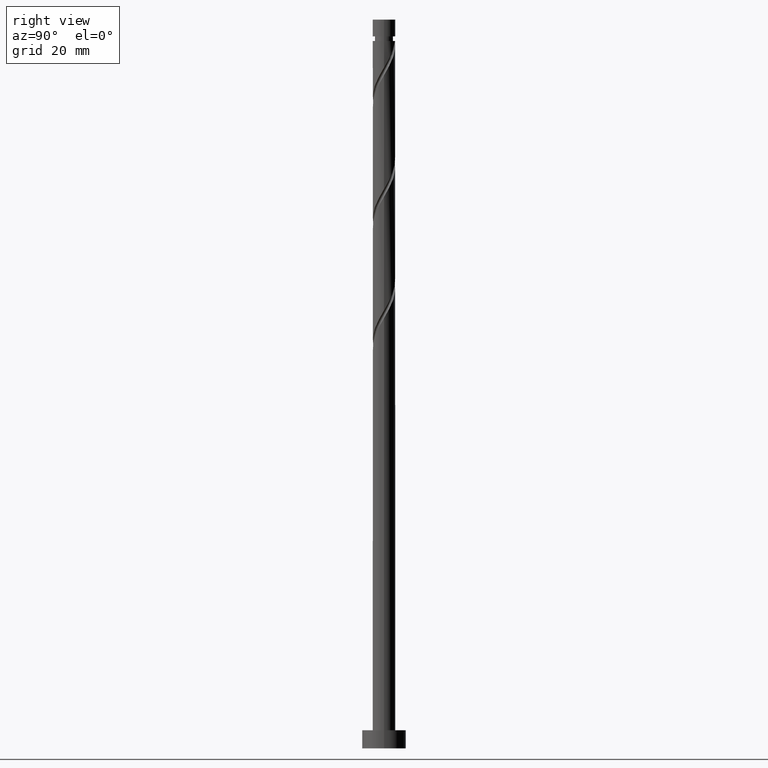
[diagram: clean part render]
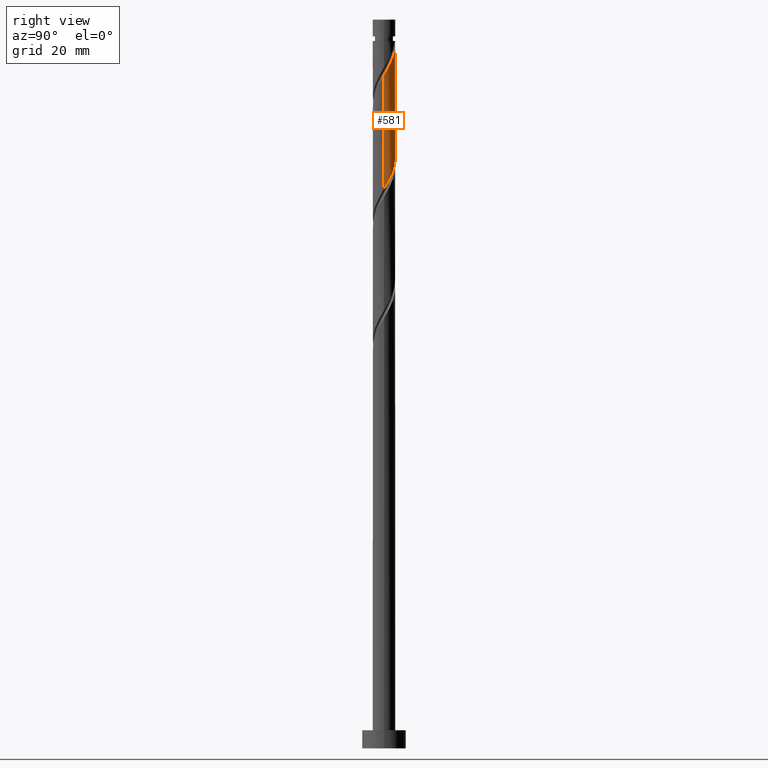
[diagram: same view with one face highlighted and labeled with its STEP entity id]
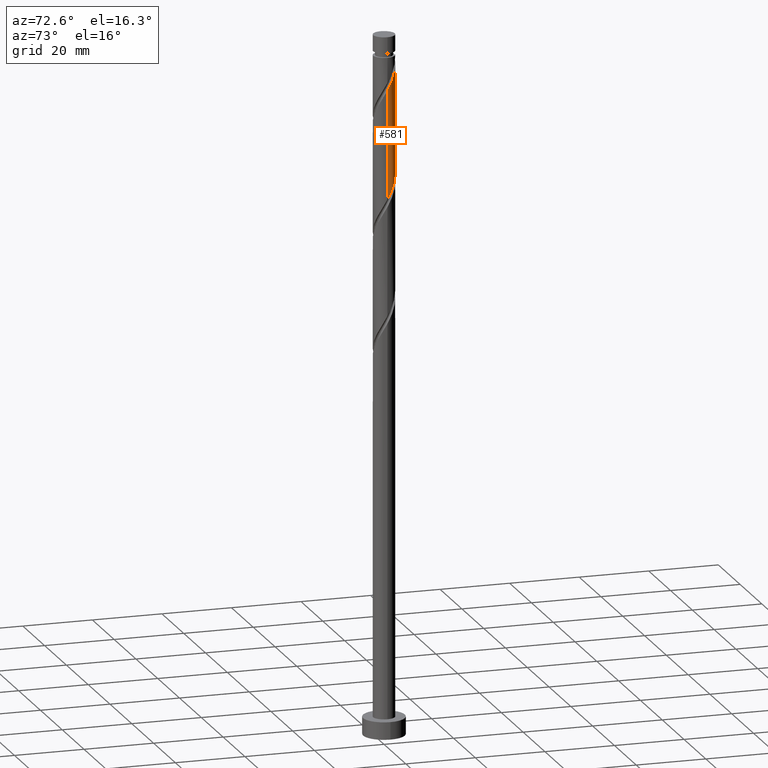
[diagram: same view with one face highlighted and labeled with its STEP entity id]
A machine part, right view. The second image highlights one B-rep face of the part: STEP entity #581.
A second angle (auxiliary view) of the same face is appended — the face is thin or edge-on in the first view.
In plain terms, the highlighted cylindrical surface (edge-blend (fillet) strip) has radius 3.1 mm, axis along (-0, -0, -1).
Its self-contained STEP definition (entity closure, byte-faithful):
#1 = CARTESIAN_POINT ( 'NONE',  ( 3.100000000000000533, 4.501089117529644308E-15, 153.5358491587207652 ) ) ;
#38 = CARTESIAN_POINT ( 'NONE',  ( 2.053244326128037756, 2.322539071194070548, 158.0278380590661698 ) ) ;
#65 = CARTESIAN_POINT ( 'NONE',  ( 3.100000000000000977, 4.501089117529643519E-15, 153.5358491587207652 ) ) ;
#90 = CARTESIAN_POINT ( 'NONE',  ( 3.100000000000000089, 3.796405077356794918E-16, 200.0000000000000000 ) ) ;
#110 = CARTESIAN_POINT ( 'NONE',  ( 3.100000000000004974, 0.3115617227303456027, 185.2754755508231881 ) ) ;
#112 = CARTESIAN_POINT ( 'NONE',  ( 3.100000000000003197, -1.031811126609779433E-15, 184.7420491816338597 ) ) ;
#115 = DIRECTION ( 'NONE',  ( -0.000000000000000000, -0.000000000000000000, -1.000000000000000000 ) ) ;
#118 = DIRECTION ( 'NONE',  ( -1.000000000000000000, 0.000000000000000000, 0.000000000000000000 ) ) ;
#136 = CARTESIAN_POINT ( 'NONE',  ( 0.6168922110061058062, 3.037999999999999812, 160.8056158368439981 ) ) ;
#168 = CARTESIAN_POINT ( 'NONE',  ( -1.371739143660136939, 2.809785738221574292, 164.2778380590662266 ) ) ;
#200 = CARTESIAN_POINT ( 'NONE',  ( -3.099999999999988098, 0.000000000000000000, 194.1389491701773125 ) ) ;
#234 = EDGE_LOOP ( 'NONE', ( #583, #1556, #1063, #555, #1562 ) ) ;
#267 =( BOUNDED_CURVE ( )  B_SPLINE_CURVE ( 2, ( #1299, #110, #1586, #389, #364, #918, #1731, #933, #1067, #1722, #518, #1438, #926, #1707, #652 ),
 .UNSPECIFIED., .F., .T. ) 
 B_SPLINE_CURVE_WITH_KNOTS ( ( 3, 2, 2, 2, 2, 2, 2, 3 ),
 ( 0.6795317669814460171, 0.6875000000000000000, 0.6979166666666667407, 0.7083333333333332593, 0.7187500000000001110, 0.7291666666666668517, 0.7395833333333333703, 0.7500000000000001110 ),
 .UNSPECIFIED. ) 
 CURVE ( )  GEOMETRIC_REPRESENTATION_ITEM ( )  RATIONAL_B_SPLINE_CURVE ( ( 0.9062941362546501622, 0.9031415850403542445, 0.9090909090909298218, 0.9013135103398480785, 0.9090909090909298218, 0.9013135103398480785, 0.9090909090909298218, 0.9013135103398480785, 0.9090909090909298218, 0.9013135103398480785, 0.9090909090909298218, 0.9013135103398480785, 0.9090909090909298218, 0.9013135103398480785, 0.9090909090909298218 ) ) 
 REPRESENTATION_ITEM ( '' )  );
#303 = CARTESIAN_POINT ( 'NONE',  ( -1.711981735581151964, 2.584399066908310783, 164.9722825035107121 ) ) ;
#364 = CARTESIAN_POINT ( 'NONE',  ( 2.774819207282409383, 1.382164377668820165, 187.1945047257328554 ) ) ;
#377 = FACE_OUTER_BOUND ( 'NONE', #234, .T. ) ;
#389 = CARTESIAN_POINT ( 'NONE',  ( 2.956784599678840664, 1.016852498676613648, 186.5000602812883699 ) ) ;
#411 = CARTESIAN_POINT ( 'NONE',  ( -0.1904201403740956866, 3.094146113249972796, 162.1945047257329122 ) ) ;
#418 = EDGE_CURVE ( 'NONE', #610, #1373, #826, .T. ) ;
#424 = CARTESIAN_POINT ( 'NONE',  ( 3.069076826178781303, 0.5977722040837861739, 154.5556158368440265 ) ) ;
#488 = CARTESIAN_POINT ( 'NONE',  ( -3.100000000000000089, 0.000000000000000000, 200.0000000000000000 ) ) ;
#512 = CARTESIAN_POINT ( 'NONE',  ( -2.956784599678835779, 1.016852498676613870, 168.4445047257328838 ) ) ;
#518 = CARTESIAN_POINT ( 'NONE',  ( 0.9847556738719657199, 2.939431282200179574, 191.3611713923995126 ) ) ;
#522 = CARTESIAN_POINT ( 'NONE',  ( -2.774819207282405831, 1.382164377668820832, 167.7500602812885120 ) ) ;
#531 = CARTESIAN_POINT ( 'NONE',  ( -3.100000000000000089, -1.899130624339749892E-15, 170.2025158253874224 ) ) ;
#555 = ORIENTED_EDGE ( 'NONE', *, *, #418, .F. ) ;
#565 = VERTEX_POINT ( 'NONE', #1180 ) ;
#581 = ADVANCED_FACE ( 'NONE', ( #377 ), #1197, .T. ) ;
#583 = ORIENTED_EDGE ( 'NONE', *, *, #1231, .F. ) ;
#598 = EDGE_CURVE ( 'NONE', #1373, #1148, #1158, .T. ) ;
#610 = VERTEX_POINT ( 'NONE', #200 ) ;
#634 = DIRECTION ( 'NONE',  ( -0.000000000000000000, -0.000000000000000000, -1.000000000000000000 ) ) ;
#652 = CARTESIAN_POINT ( 'NONE',  ( -0.6168922110061301201, 3.037999999999998479, 194.1389491701773977 ) ) ;
#687 = CARTESIAN_POINT ( 'NONE',  ( 1.747476256661028682, 2.592853814885977215, 158.7222825035106837 ) ) ;
#699 = CARTESIAN_POINT ( 'NONE',  ( 3.094146113249972796, 0.1904201403740943266, 153.8611713923995694 ) ) ;
#730 = CARTESIAN_POINT ( 'NONE',  ( 3.100000000000000533, 0.09530005013878883879, 153.6990128467489001 ) ) ;
#767 = LINE ( 'NONE', #90, #1441 ) ;
#780 = CARTESIAN_POINT ( 'NONE',  ( 0.000000000000000000, 0.000000000000000000, 200.0000000000000000 ) ) ;
#789 = CARTESIAN_POINT ( 'NONE',  ( 0.000000000000000000, 0.000000000000000000, 194.1389491701773125 ) ) ;
#805 = DIRECTION ( 'NONE',  ( -1.000000000000000000, 0.000000000000000000, 0.000000000000000000 ) ) ;
#826 = LINE ( 'NONE', #488, #1110 ) ;
#918 = CARTESIAN_POINT ( 'NONE',  ( 2.592853814885982100, 1.747476256661027350, 187.8889491701773125 ) ) ;
#926 = CARTESIAN_POINT ( 'NONE',  ( 0.1904201403740989340, 3.094146113249975460, 192.7500602812884267 ) ) ;
#933 = CARTESIAN_POINT ( 'NONE',  ( 2.052224327502171430, 2.359012395595048162, 189.2778380590661982 ) ) ;
#946 = CARTESIAN_POINT ( 'NONE',  ( 1.382164377668822608, 2.774819207282405387, 159.4167269479551123 ) ) ;
#955 = CARTESIAN_POINT ( 'NONE',  ( 2.584399066908310783, 1.711981735581151520, 156.6389491701773125 ) ) ;
#966 = CARTESIAN_POINT ( 'NONE',  ( -0.5977722040837880613, 3.069076826178780415, 162.8889491701773125 ) ) ;
#984 = CARTESIAN_POINT ( 'NONE',  ( -0.9847556738719625002, 2.939431282200177353, 163.5833936146217411 ) ) ;
#1040 = CARTESIAN_POINT ( 'NONE',  ( -3.100000000000002309, 0.3115617227303513204, 169.6690894561981509 ) ) ;
#1063 = ORIENTED_EDGE ( 'NONE', *, *, #598, .F. ) ;
#1067 = CARTESIAN_POINT ( 'NONE',  ( 1.711981735581154407, 2.584399066908313003, 189.9722825035105984 ) ) ;
#1071 = CARTESIAN_POINT ( 'NONE',  ( -2.592853814885977215, 1.747476256661027572, 167.0556158368440265 ) ) ;
#1109 = VERTEX_POINT ( 'NONE', #112 ) ;
#1110 = VECTOR ( 'NONE', #1328, 1000.000000000000000 ) ;
#1148 = VERTEX_POINT ( 'NONE', #1 ) ;
#1158 =( BOUNDED_CURVE ( )  B_SPLINE_CURVE ( 2, ( #531, #1040, #1726, #512, #522, #1071, #1644, #1657, #303, #168, #984, #966, #411, #1349, #136, #1256, #946, #687, #38, #1217, #955, #1228, #1636, #424, #699, #730, #65 ),
 .UNSPECIFIED., .F., .T. ) 
 B_SPLINE_CURVE_WITH_KNOTS ( ( 3, 2, 2, 2, 2, 2, 2, 2, 2, 2, 2, 2, 2, 3 ),
 ( 0.4295317669814461281, 0.4375000000000000000, 0.4479166666666666852, 0.4583333333333333148, 0.4687500000000000000, 0.4791666666666666852, 0.4895833333333333148, 0.5000000000000000000, 0.5104166666666666297, 0.5208333333333333703, 0.5312500000000000000, 0.5416666666666666297, 0.5520833333333333703, 0.5545317669814462391 ),
 .UNSPECIFIED. ) 
 CURVE ( )  GEOMETRIC_REPRESENTATION_ITEM ( )  RATIONAL_B_SPLINE_CURVE ( ( 0.9062941362546449442, 0.9031415850403489154, 0.9090909090909243817, 0.9013135103398428605, 0.9090909090909243817, 0.9013135103398428605, 0.9090909090909243817, 0.9013135103398428605, 0.9090909090909243817, 0.9013135103398428605, 0.9090909090909243817, 0.9013135103398428605, 0.9090909090909243817, 0.9013135103398428605, 0.9090909090909243817, 0.9013135103398428605, 0.9090909090909243817, 0.9013135103398428605, 0.9090909090909243817, 0.9013135103398428605, 0.9090909090909243817, 0.9013135103398428605, 0.9090909090909243817, 0.9013135103398428605, 0.9090909090909243817, 0.9072628343904182158, 0.9062941362546447222 ) ) 
 REPRESENTATION_ITEM ( '' )  );
#1180 = CARTESIAN_POINT ( 'NONE',  ( -0.6168922110061301201, 3.037999999999998924, 194.1389491701773977 ) ) ;
#1197 = CYLINDRICAL_SURFACE ( 'NONE', #1303, 3.100000000000000089 ) ;
#1217 = CARTESIAN_POINT ( 'NONE',  ( 2.359012395595048606, 2.052224327502166101, 157.3333936146217980 ) ) ;
#1223 = CIRCLE ( 'NONE', #1547, 3.099999999999988098 ) ;
#1228 = CARTESIAN_POINT ( 'NONE',  ( 2.809785738221575624, 1.371739143660134941, 155.9445047257328838 ) ) ;
#1231 = EDGE_CURVE ( 'NONE', #1109, #565, #267, .T. ) ;
#1256 = CARTESIAN_POINT ( 'NONE',  ( 1.016852498676616534, 2.956784599678834002, 160.1111713923995126 ) ) ;
#1264 = EDGE_CURVE ( 'NONE', #1109, #1148, #767, .T. ) ;
#1299 = CARTESIAN_POINT ( 'NONE',  ( 3.100000000000003197, -1.031811126609779433E-15, 184.7420491816338597 ) ) ;
#1303 = AXIS2_PLACEMENT_3D ( 'NONE', #780, #115, #805 ) ;
#1325 = DIRECTION ( 'NONE',  ( -0.000000000000000000, -0.000000000000000000, -1.000000000000000000 ) ) ;
#1328 = DIRECTION ( 'NONE',  ( -0.000000000000000000, -0.000000000000000000, -1.000000000000000000 ) ) ;
#1349 = CARTESIAN_POINT ( 'NONE',  ( 0.2169319233355964660, 3.119215400321164733, 161.5000602812884267 ) ) ;
#1373 = VERTEX_POINT ( 'NONE', #1445 ) ;
#1407 = EDGE_CURVE ( 'NONE', #610, #565, #1223, .T. ) ;
#1438 = CARTESIAN_POINT ( 'NONE',  ( 0.5977722040837911699, 3.069076826178783524, 192.0556158368439696 ) ) ;
#1441 = VECTOR ( 'NONE', #634, 1000.000000000000000 ) ;
#1445 = CARTESIAN_POINT ( 'NONE',  ( -3.100000000000000533, -1.899130624339749892E-15, 170.2025158253874224 ) ) ;
#1547 = AXIS2_PLACEMENT_3D ( 'NONE', #789, #1325, #118 ) ;
#1556 = ORIENTED_EDGE ( 'NONE', *, *, #1264, .T. ) ;
#1562 = ORIENTED_EDGE ( 'NONE', *, *, #1407, .T. ) ;
#1586 = CARTESIAN_POINT ( 'NONE',  ( 3.038000000000003364, 0.6168922110061046959, 185.8056158368439412 ) ) ;
#1636 = CARTESIAN_POINT ( 'NONE',  ( 2.939431282200178686, 0.9847556738719602798, 155.2500602812884551 ) ) ;
#1644 = CARTESIAN_POINT ( 'NONE',  ( -2.322539071194071880, 2.053244326128036867, 166.3611713923995410 ) ) ;
#1657 = CARTESIAN_POINT ( 'NONE',  ( -2.052224327502166545, 2.359012395595047717, 165.6667269479551123 ) ) ;
#1707 = CARTESIAN_POINT ( 'NONE',  ( -0.2169319233355975207, 3.119215400321167841, 193.4445047257328554 ) ) ;
#1722 = CARTESIAN_POINT ( 'NONE',  ( 1.371739143660140714, 2.809785738221576512, 190.6667269479550839 ) ) ;
#1726 = CARTESIAN_POINT ( 'NONE',  ( -3.037999999999999812, 0.6168922110061053621, 169.1389491701773409 ) ) ;
#1731 = CARTESIAN_POINT ( 'NONE',  ( 2.322539071194076765, 2.053244326128037311, 188.5833936146217695 ) ) ;